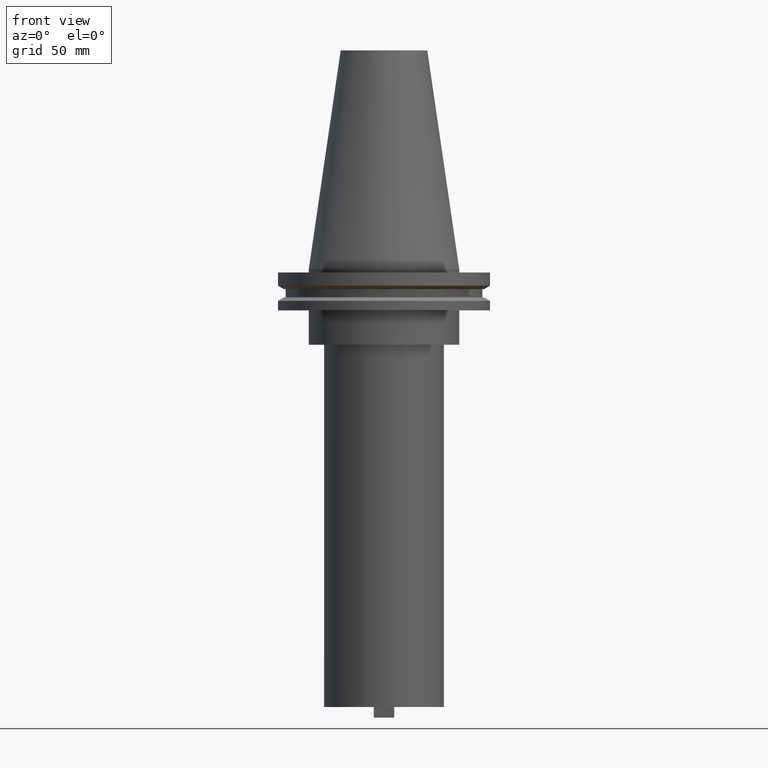
[diagram: clean part render]
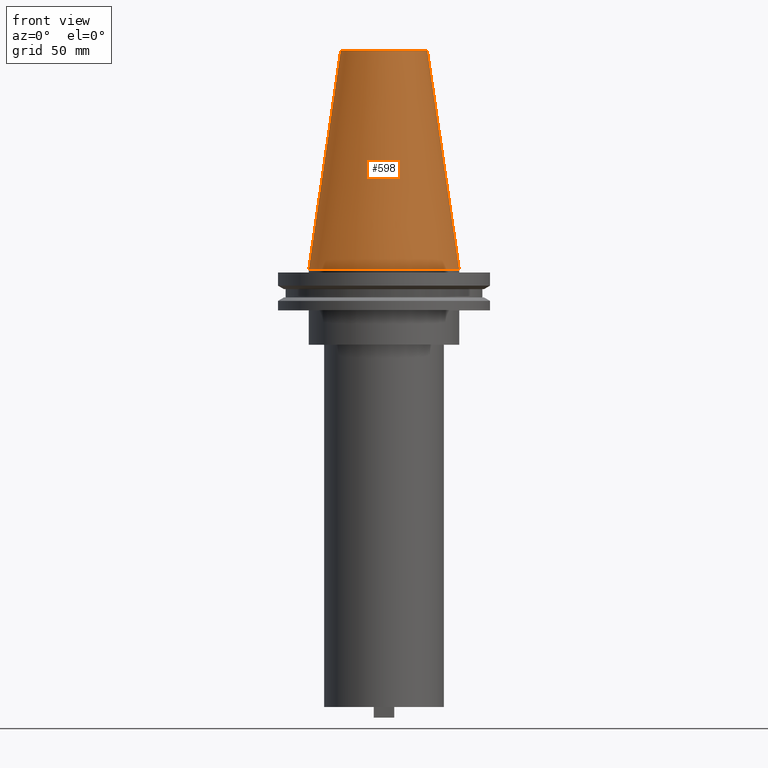
[diagram: same view with one face highlighted and labeled with its STEP entity id]
A machine part, front view. The second image highlights one B-rep face of the part: STEP entity #598.
In plain terms, the highlighted conical surface has half-angle 8.297 deg.
Its self-contained STEP definition (entity closure, byte-faithful):
#7 = CARTESIAN_POINT ( 'NONE',  ( -34.92499999999999005, 0.000000000000000000, 0.000000000000000000 ) ) ;
#12 = EDGE_CURVE ( 'NONE', #749, #692, #894, .T. ) ;
#38 = CARTESIAN_POINT ( 'NONE',  ( 34.92499999999999005, 4.277078946022130098E-15, 0.000000000000000000 ) ) ;
#53 = EDGE_CURVE ( 'NONE', #749, #531, #545, .T. ) ;
#56 = DIRECTION ( 'NONE',  ( -1.000000000000000000, 0.000000000000000000, 0.000000000000000000 ) ) ;
#111 = EDGE_LOOP ( 'NONE', ( #964, #322, #246, #713 ) ) ;
#152 = FACE_OUTER_BOUND ( 'NONE', #111, .T. ) ;
#181 = AXIS2_PLACEMENT_3D ( 'NONE', #219, #1077, #893 ) ;
#219 = CARTESIAN_POINT ( 'NONE',  ( 0.000000000000000000, 0.000000000000000000, 0.000000000000000000 ) ) ;
#246 = ORIENTED_EDGE ( 'NONE', *, *, #12, .T. ) ;
#288 = CONICAL_SURFACE ( 'NONE', #818, 34.92499999999999005, 0.1448138465474119452 ) ;
#322 = ORIENTED_EDGE ( 'NONE', *, *, #53, .F. ) ;
#327 = VECTOR ( 'NONE', #471, 999.9999999999998863 ) ;
#387 = DIRECTION ( 'NONE',  ( -0.000000000000000000, -0.000000000000000000, 1.000000000000000000 ) ) ;
#416 = DIRECTION ( 'NONE',  ( 0.000000000000000000, 0.000000000000000000, -1.000000000000000000 ) ) ;
#468 = EDGE_CURVE ( 'NONE', #531, #1017, #1053, .T. ) ;
#471 = DIRECTION ( 'NONE',  ( -0.1443082272672999988, 0.000000000000000000, -0.9895327864921755756 ) ) ;
#517 = EDGE_CURVE ( 'NONE', #692, #1017, #715, .T. ) ;
#531 = VERTEX_POINT ( 'NONE', #583 ) ;
#545 = CIRCLE ( 'NONE', #991, 20.10819343178871321 ) ;
#583 = CARTESIAN_POINT ( 'NONE',  ( 20.10819343178871321, 3.369811209154858606E-15, 101.5999999999999801 ) ) ;
#586 = CARTESIAN_POINT ( 'NONE',  ( 34.92499999999999005, 4.277078946022130098E-15, 0.000000000000000000 ) ) ;
#598 = ADVANCED_FACE ( 'NONE', ( #152 ), #288, .T. ) ;
#624 = CARTESIAN_POINT ( 'NONE',  ( 0.000000000000000000, 0.000000000000000000, 101.5999999999999801 ) ) ;
#692 = VERTEX_POINT ( 'NONE', #7 ) ;
#713 = ORIENTED_EDGE ( 'NONE', *, *, #517, .T. ) ;
#715 = CIRCLE ( 'NONE', #181, 34.92499999999999005 ) ;
#747 = CARTESIAN_POINT ( 'NONE',  ( 0.000000000000000000, 0.000000000000000000, 0.000000000000000000 ) ) ;
#749 = VERTEX_POINT ( 'NONE', #919 ) ;
#818 = AXIS2_PLACEMENT_3D ( 'NONE', #747, #416, #56 ) ;
#823 = VECTOR ( 'NONE', #870, 999.9999999999998863 ) ;
#870 = DIRECTION ( 'NONE',  ( 0.1443082272672999988, 1.767266086135277066E-17, -0.9895327864921755756 ) ) ;
#893 = DIRECTION ( 'NONE',  ( 1.000000000000000000, 0.000000000000000000, 0.000000000000000000 ) ) ;
#894 = LINE ( 'NONE', #1036, #327 ) ;
#919 = CARTESIAN_POINT ( 'NONE',  ( -20.10819343178871321, 0.000000000000000000, 101.5999999999999801 ) ) ;
#964 = ORIENTED_EDGE ( 'NONE', *, *, #468, .F. ) ;
#968 = DIRECTION ( 'NONE',  ( 1.000000000000000000, 0.000000000000000000, 0.000000000000000000 ) ) ;
#991 = AXIS2_PLACEMENT_3D ( 'NONE', #624, #387, #968 ) ;
#1017 = VERTEX_POINT ( 'NONE', #586 ) ;
#1036 = CARTESIAN_POINT ( 'NONE',  ( -34.92499999999999005, 0.000000000000000000, 0.000000000000000000 ) ) ;
#1053 = LINE ( 'NONE', #38, #823 ) ;
#1077 = DIRECTION ( 'NONE',  ( -0.000000000000000000, -0.000000000000000000, 1.000000000000000000 ) ) ;